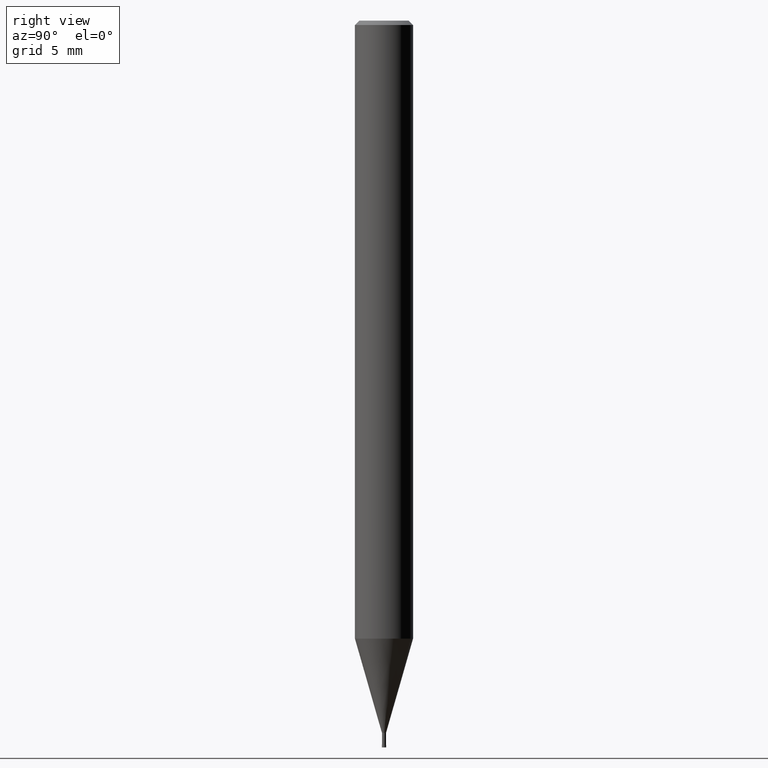
[diagram: clean part render]
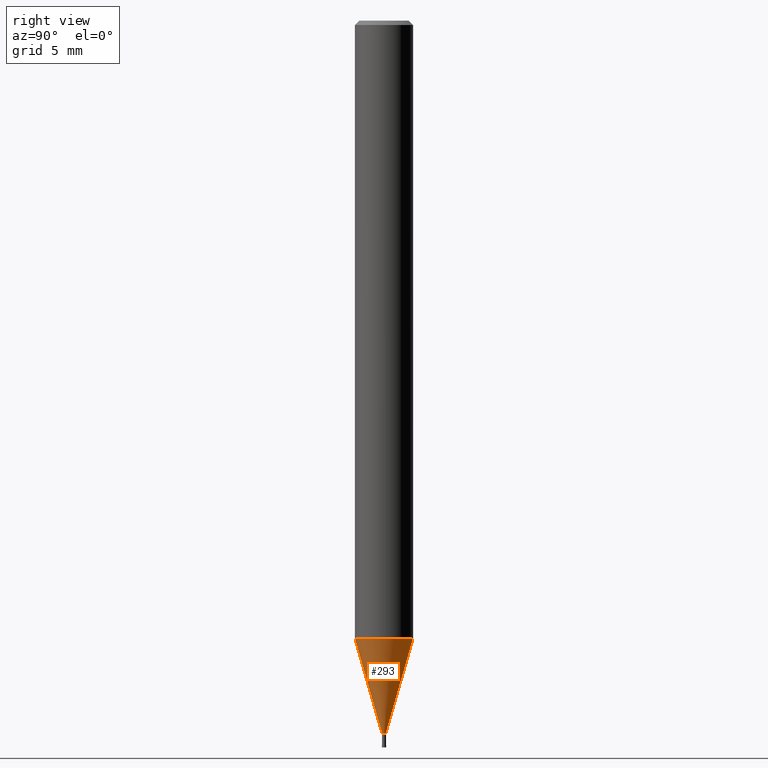
[diagram: same view with one face highlighted and labeled with its STEP entity id]
A machine part, right view. The second image highlights one B-rep face of the part: STEP entity #293.
In plain terms, the highlighted conical surface has half-angle 15.999 deg.
Its self-contained STEP definition (entity closure, byte-faithful):
#161=VERTEX_POINT('',#402);
#163=EDGE_CURVE('',#161,#259,#404,.T.);
#207=EDGE_CURVE('',#343,#259,#452,.T.);
#219=EDGE_CURVE('',#335,#161,#465,.T.);
#239=EDGE_CURVE('',#343,#335,#487,.T.);
#259=VERTEX_POINT('',#509);
#293=ADVANCED_FACE('',(#549),#550,.T.);
#335=VERTEX_POINT('',#599);
#343=VERTEX_POINT('',#607);
#402=CARTESIAN_POINT('',(1.71383659217442E-017,-0.13995,-48.99));
#404=LINE('',#669,#670);
#452=CIRCLE('',#734,1.99995);
#465=CIRCLE('',#751,0.13995);
#487=LINE('',#777,#778);
#509=CARTESIAN_POINT('',(2.44915147732706E-016,-1.99995,-42.503));
#549=FACE_OUTER_BOUND('',#855,.T.);
#550=CONICAL_SURFACE('',#856,1.06995,0.27923596926092);
#599=CARTESIAN_POINT('',(0.0,0.13995,-48.99));
#607=CARTESIAN_POINT('',(0.0,1.99995,-42.503));
#669=CARTESIAN_POINT('',(1.31026756827225E-016,-1.06995,-45.7465));
#670=VECTOR('',#994,1.0);
#734=AXIS2_PLACEMENT_3D('',#1050,#1051,#1052);
#751=AXIS2_PLACEMENT_3D('',#1065,#1066,#1067);
#777=CARTESIAN_POINT('',(-1.31026756827225E-016,1.06995,-45.7465));
#778=VECTOR('',#1097,1.0);
#855=EDGE_LOOP('',(#1185,#1186,#1187,#1188));
#856=AXIS2_PLACEMENT_3D('',#1189,#1190,#1191);
#994=DIRECTION('',(3.37527585527933E-017,-0.275621292078393,0.961266301995986));
#1050=CARTESIAN_POINT('',(0.0,0.0,-42.503));
#1051=DIRECTION('',(0.0,0.0,-1.0));
#1052=DIRECTION('',(0.0,1.0,0.0));
#1065=CARTESIAN_POINT('',(0.0,0.0,-48.99));
#1066=DIRECTION('',(0.0,0.0,-1.0));
#1067=DIRECTION('',(0.0,1.0,0.0));
#1097=DIRECTION('',(3.37527585527933E-017,-0.275621292078393,-0.961266301995986));
#1185=ORIENTED_EDGE('',*,*,#239,.F.);
#1186=ORIENTED_EDGE('',*,*,#207,.T.);
#1187=ORIENTED_EDGE('',*,*,#163,.F.);
#1188=ORIENTED_EDGE('',*,*,#219,.F.);
#1189=CARTESIAN_POINT('',(0.0,0.0,-45.7465));
#1190=DIRECTION('',(-0.0,-0.0,1.0));
#1191=DIRECTION('',(0.0,1.0,0.0));